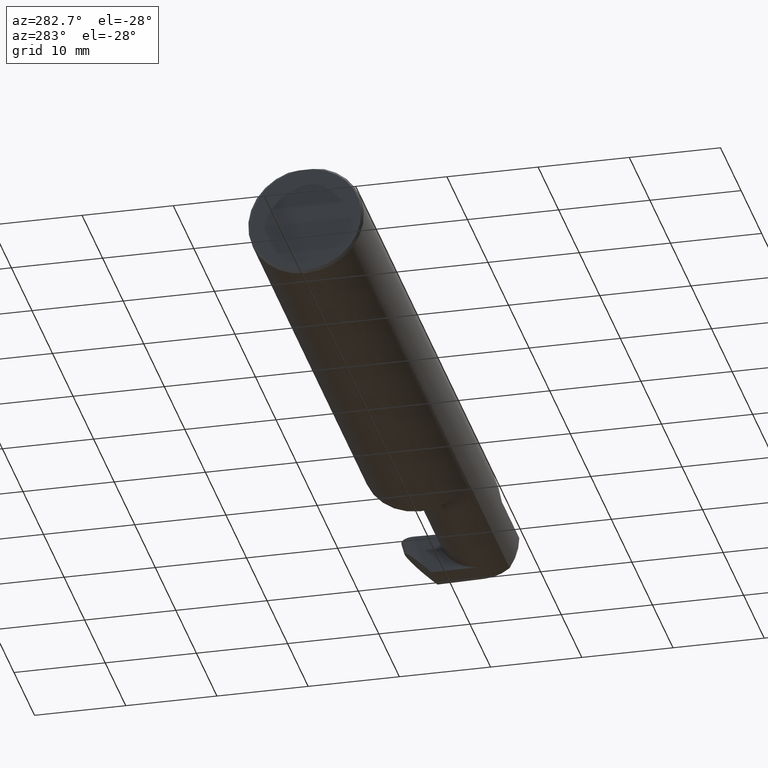
[diagram: clean part render]
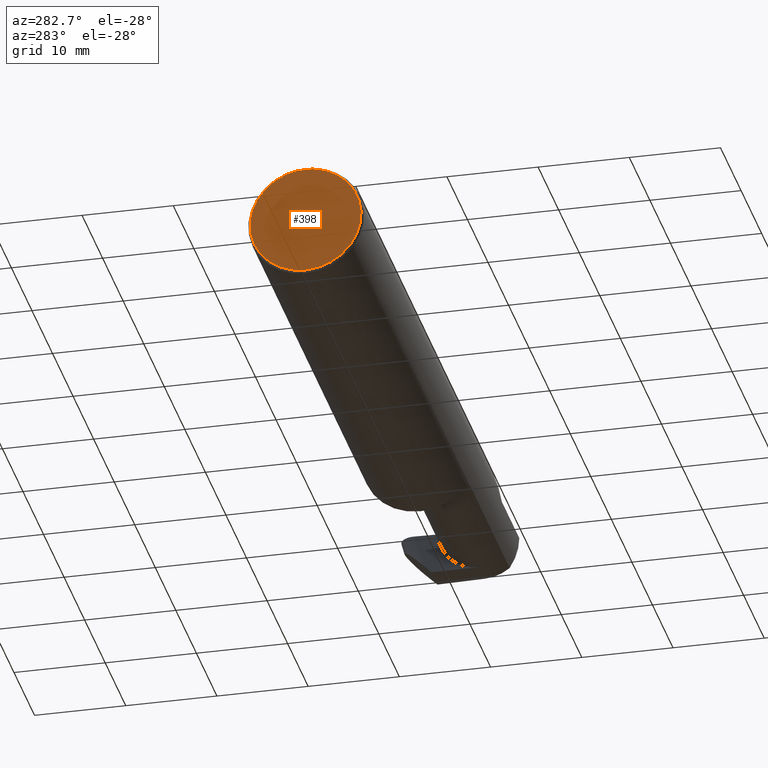
[diagram: same view with one face highlighted and labeled with its STEP entity id]
A machine part, auxiliary view. The second image highlights one B-rep face of the part: STEP entity #398.
In plain terms, the highlighted planar face has unit normal (1, 0, 0).
Its self-contained STEP definition (entity closure, byte-faithful):
#32 = CARTESIAN_POINT ( 'NONE',  ( 0.000000000000000000, 0.000000000000000000, 0.000000000000000000 ) ) ;
#74 = AXIS2_PLACEMENT_3D ( 'NONE', #32, #710, #644 ) ;
#101 = CIRCLE ( 'NONE', #604, 0.2398500000000001742 ) ;
#165 = VECTOR ( 'NONE', #526, 39.37007874015748143 ) ;
#182 = FACE_OUTER_BOUND ( 'NONE', #649, .T. ) ;
#213 = CARTESIAN_POINT ( 'NONE',  ( 0.000000000000000000, -0.03090954545120560767, 0.2378499999999998671 ) ) ;
#226 = VERTEX_POINT ( 'NONE', #213 ) ;
#232 = VERTEX_POINT ( 'NONE', #530 ) ;
#239 = CARTESIAN_POINT ( 'NONE',  ( 0.000000000000000000, 0.000000000000000000, 0.000000000000000000 ) ) ;
#269 = LINE ( 'NONE', #723, #165 ) ;
#282 = EDGE_CURVE ( 'NONE', #232, #548, #327, .T. ) ;
#291 = EDGE_CURVE ( 'NONE', #226, #232, #269, .T. ) ;
#327 = CIRCLE ( 'NONE', #74, 0.2398500000000001742 ) ;
#330 = EDGE_CURVE ( 'NONE', #548, #226, #101, .T. ) ;
#332 = DIRECTION ( 'NONE',  ( -1.000000000000000000, -0.000000000000000000, -0.000000000000000000 ) ) ;
#350 = DIRECTION ( 'NONE',  ( 0.000000000000000000, 0.000000000000000000, -1.000000000000000000 ) ) ;
#398 = ADVANCED_FACE ( 'NONE', ( #182 ), #613, .F. ) ;
#481 = ORIENTED_EDGE ( 'NONE', *, *, #282, .T. ) ;
#514 = CARTESIAN_POINT ( 'NONE',  ( 0.000000000000000000, 0.000000000000000000, 0.000000000000000000 ) ) ;
#526 = DIRECTION ( 'NONE',  ( -0.000000000000000000, 1.000000000000000000, -0.000000000000000000 ) ) ;
#530 = CARTESIAN_POINT ( 'NONE',  ( 0.000000000000000000, 0.03090954545120574992, 0.2378499999999998671 ) ) ;
#538 = AXIS2_PLACEMENT_3D ( 'NONE', #239, #546, #350 ) ;
#539 = ORIENTED_EDGE ( 'NONE', *, *, #291, .T. ) ;
#546 = DIRECTION ( 'NONE',  ( 1.000000000000000000, 0.000000000000000000, 0.000000000000000000 ) ) ;
#548 = VERTEX_POINT ( 'NONE', #769 ) ;
#604 = AXIS2_PLACEMENT_3D ( 'NONE', #514, #332, #776 ) ;
#613 = PLANE ( 'NONE',  #538 ) ;
#644 = DIRECTION ( 'NONE',  ( 0.000000000000000000, 0.000000000000000000, -1.000000000000000000 ) ) ;
#649 = EDGE_LOOP ( 'NONE', ( #539, #481, #692 ) ) ;
#692 = ORIENTED_EDGE ( 'NONE', *, *, #330, .T. ) ;
#710 = DIRECTION ( 'NONE',  ( -1.000000000000000000, -0.000000000000000000, -0.000000000000000000 ) ) ;
#723 = CARTESIAN_POINT ( 'NONE',  ( 0.000000000000000000, 0.2498499999999998500, 0.2378499999999998671 ) ) ;
#769 = CARTESIAN_POINT ( 'NONE',  ( 0.000000000000000000, 0.000000000000000000, -0.2398500000000001742 ) ) ;
#776 = DIRECTION ( 'NONE',  ( 0.000000000000000000, 0.000000000000000000, -1.000000000000000000 ) ) ;